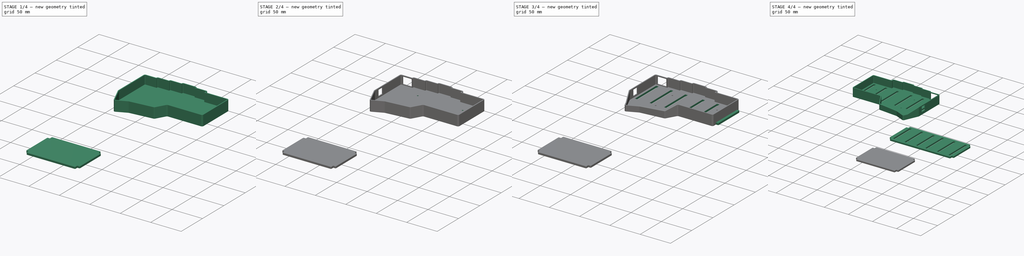
[diagram: build sequence overview — one tinted view per stage of 4, left to right]
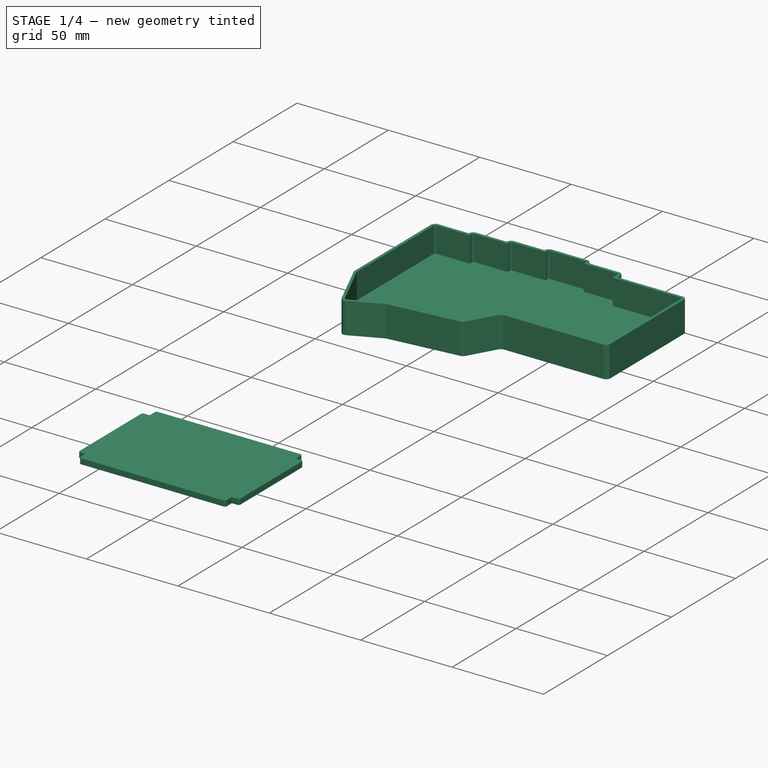
[diagram: stage 1 of 4 — iso view after this stage's code; geometry added in this stage tinted green]
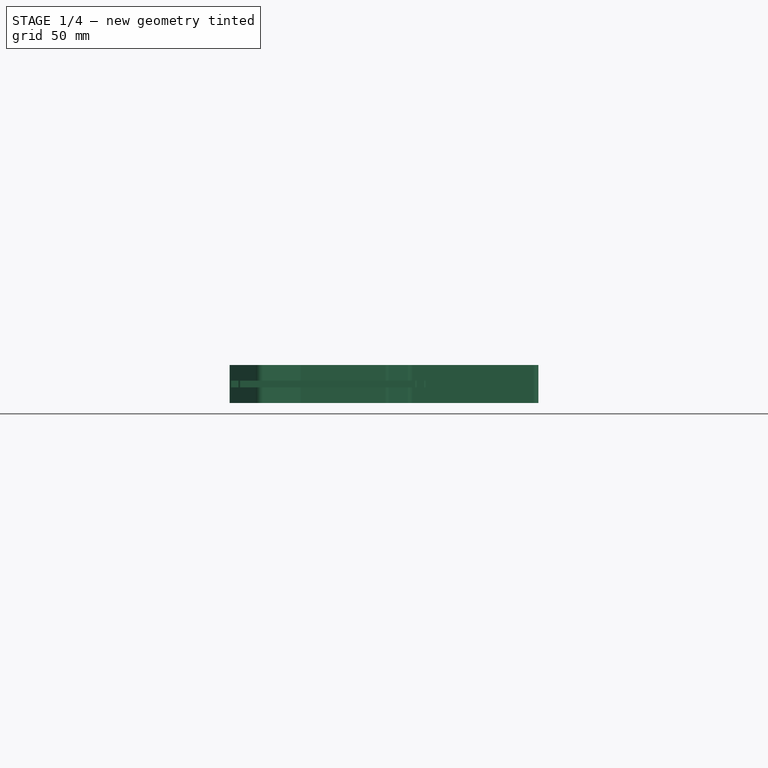
[diagram: stage 1 of 4 — front view after this stage's code; geometry added in this stage tinted green]
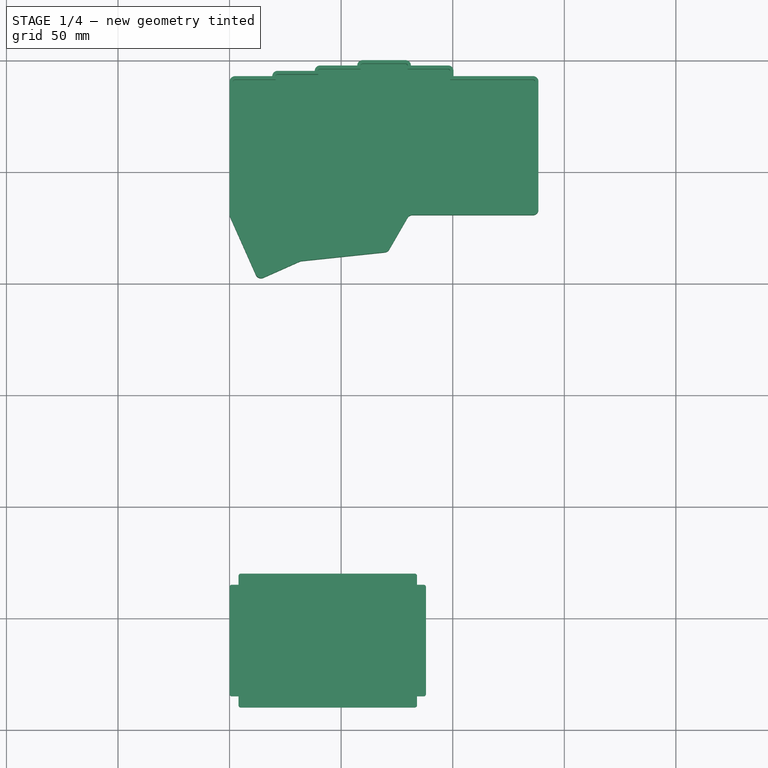
[diagram: stage 1 of 4 — top view after this stage's code; geometry added in this stage tinted green]
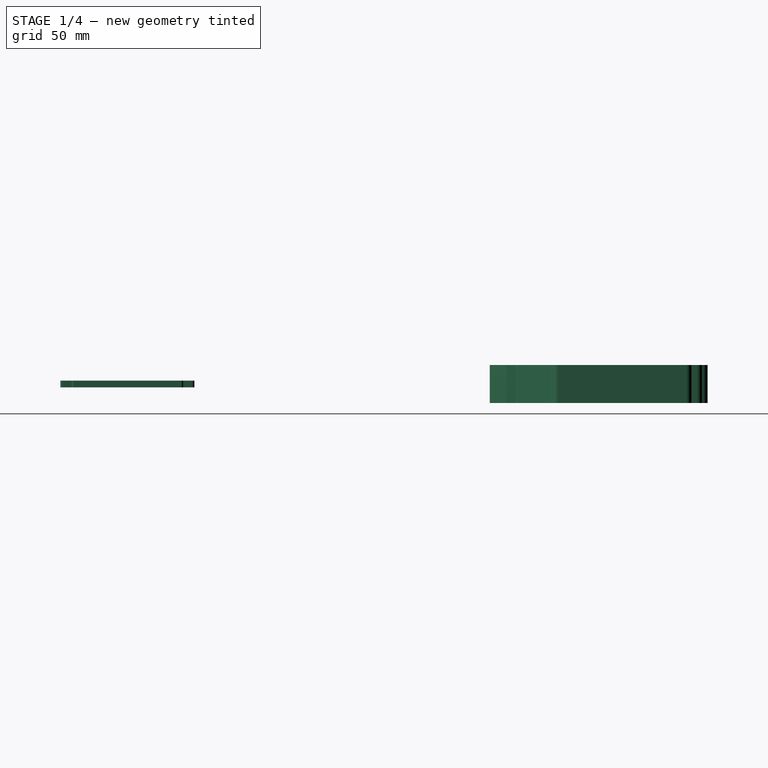
[diagram: stage 1 of 4 — right view after this stage's code; geometry added in this stage tinted green]
FCSTD DOCUMENT  (FreeCAD 0.21R33771 (Git))
Label: CorneCase
License: All rights reserved
LicenseURL: https://en.wikipedia.org/wiki/All_rights_reserved
objects: Sketcher::SketchObject×11, PartDesign::Pocket×7, PartDesign::Pad×4, PartDesign::Body×3, Part::Mirroring×1
note: 37 computed .brp shape members not serialized (recipe doc carries the construction recipe); baked Part::Feature solids carry a one-line shape summary decoded from their .brp

FEATURE [Sketcher::SketchObject] Sketch
  FullyConstrained = true
  MapMode = 5
  Support = -> [XY_Plane]
  sketch-geometry (27):
    g0: LineSegment StartX=2.47 StartY=-7.17 StartZ=0 EndX=19.13 EndY=-7.17 EndZ=0
    g1: LineSegment StartX=21.52 StartY=-4.78 StartZ=0 EndX=38.16 EndY=-4.78 EndZ=0
    g2: LineSegment StartX=40.55 StartY=-2.39 StartZ=0 EndX=57.21 EndY=-2.39 EndZ=0
    g3: LineSegment StartX=59.6 StartY=0 StartZ=0 EndX=78.87 EndY=0 EndZ=0
    g4: LineSegment StartX=81.26 StartY=-2.39 StartZ=0 EndX=97.95 EndY=-2.39 EndZ=0
    g5: LineSegment StartX=138.4 StartY=-9.54 StartZ=0 EndX=138.4 EndY=-66.93 EndZ=0
    g6: LineSegment StartX=136.01 StartY=-69.32 StartZ=0 EndX=82.02 EndY=-69.32 EndZ=0
    g7: LineSegment StartX=79.6817 StartY=-70.67 StartZ=0 EndX=71.58 EndY=-84.7026 EndZ=0
    g8: LineSegment StartX=69.524 StartY=-86.0378 StartZ=0 EndX=32.2149 EndY=-89.9592 EndZ=0
    g9: LineSegment StartX=31.3989 StartY=-90.1778 StartZ=0 EndX=15.1827 EndY=-97.3977 EndZ=0
    g10: LineSegment StartX=11.75 StartY=-96.08 StartZ=0 EndX=0.233427 EndY=-70.2134 EndZ=0
    g11: LineSegment StartX=3.6e-15 StartY=-69.1152 StartZ=0 EndX=3.6e-15 EndY=-9.64 EndZ=0
    g12: ArcOfCircle CenterX=2.47 CenterY=-9.64 CenterZ=0 NormalX=0 NormalY=0 NormalZ=1 AngleXU=0 Radius=2.47 StartAngle=1.5708 EndAngle=3.14159
    g13: ArcOfCircle CenterX=21.52 CenterY=-7.17 CenterZ=0 NormalX=0 NormalY=0 NormalZ=1 AngleXU=0 Radius=2.39 StartAngle=1.5708 EndAngle=3.14159
    g14: ArcOfCircle CenterX=40.55 CenterY=-4.78 CenterZ=0 NormalX=0 NormalY=0 NormalZ=1 AngleXU=0 Radius=2.39 StartAngle=1.5708 EndAngle=3.14159
    g15: ArcOfCircle CenterX=59.6 CenterY=-2.39 CenterZ=0 NormalX=0 NormalY=0 NormalZ=1 AngleXU=0 Radius=2.39 StartAngle=1.5708 EndAngle=3.14159
    g16: ArcOfCircle CenterX=78.87 CenterY=-2.39 CenterZ=0 NormalX=0 NormalY=0 NormalZ=1 AngleXU=0 Radius=2.39 StartAngle=1e-16 EndAngle=1.5708
    g17: ArcOfCircle CenterX=97.95 CenterY=-4.78 CenterZ=0 NormalX=0 NormalY=0 NormalZ=1 AngleXU=0 Radius=2.39 StartAngle=0 EndAngle=1.5708
    g18: ArcOfCircle CenterX=136.01 CenterY=-9.54 CenterZ=0 NormalX=0 NormalY=0 NormalZ=1 AngleXU=0 Radius=2.39 StartAngle=1e-16 EndAngle=1.5708
    g19: ArcOfCircle CenterX=136.01 CenterY=-66.93 CenterZ=0 NormalX=0 NormalY=0 NormalZ=1 AngleXU=0 Radius=2.39 StartAngle=4.71239 EndAngle=6.28319
    g20: ArcOfCircle CenterX=14.1252 CenterY=-95.0225 CenterZ=0 NormalX=0 NormalY=0 NormalZ=1 AngleXU=0 Radius=2.6 StartAngle=3.56047 EndAngle=5.13127
    g21: ArcOfCircle CenterX=2.7 CenterY=-69.1152 CenterZ=0 NormalX=0 NormalY=0 NormalZ=1 AngleXU=0 Radius=2.7 StartAngle=3.14159 EndAngle=3.56047
    g22: ArcOfCircle CenterX=32.4971 CenterY=-92.6444 CenterZ=0 NormalX=0 NormalY=0 NormalZ=1 AngleXU=0 Radius=2.7 StartAngle=1.67552 EndAngle=1.98968
    g23: ArcOfCircle CenterX=69.2417 CenterY=-83.3526 CenterZ=0 NormalX=0 NormalY=0 NormalZ=1 AngleXU=0 Radius=2.7 StartAngle=4.81711 EndAngle=5.75959
    g24: ArcOfCircle CenterX=82.02 CenterY=-72.02 CenterZ=0 NormalX=0 NormalY=0 NormalZ=1 AngleXU=0 Radius=2.7 StartAngle=1.5708 EndAngle=2.61799
    g25: LineSegment StartX=100.34 StartY=-4.78 StartZ=0 EndX=100.34 EndY=-7.15 EndZ=0
    g26: LineSegment StartX=100.34 StartY=-7.15 StartZ=0 EndX=136.01 EndY=-7.15 EndZ=0
  constraints (74):
    c: Horizontal(g0)
    c: Horizontal(g1)
    c: Horizontal(g2)
    c: Horizontal(g3)
    c: Horizontal(g4)
    c: Vertical(g5)
    c: Horizontal(g6)
    c: Vertical(g11)
    c: Tangent(g0,g12) = 1.5708
    c: Tangent(g11,g12) = 1.5708
    c: Tangent(g1,g13) = 1.5708
    c: Coincident(g0,g13)
    c: Tangent(g2,g14) = 1.5708
    c: Coincident(g1,g14)
    c: Tangent(g3,g15) = 1.5708
    c: Coincident(g15,g2)
    c: Tangent(g3,g16) = 1.5708
    c: Coincident(g16,g4)
    c: Tangent(g4,g17) = 1.5708
    c: Angle(g17) = 1.5708
    c: Tangent(g5,g18) = 1.5708
    c: Tangent(g5,g19) = 1.5708
    c: Tangent(g6,g19) = 1.5708
    c: Radius(g19) = 2.39
    c: Tangent(g9,g20) = 1.5708
    c: Tangent(g10,g20) = 1.5708
    c: Radius(g20) = 2.6
    c: Angle(g20) = 1.5708
    c: Tangent(g10,g21) = 1.5708
    c: Tangent(g11,g21) = 1.5708
    c: Radius(g21) = 2.7
    c: Tangent(g8,g22) = -1.5708
    c: Tangent(g9,g22) = -1.5708
    c: Radius(g22) = 2.7
    c: Tangent(g7,g23) = 1.5708
    c: Tangent(g8,g23) = 1.5708
    c: Radius(g23) = 2.7
    c: Tangent(g6,g24) = -1.5708
    c: Tangent(g7,g24) = -1.5708
    c: Radius(g24) = 2.7
    c: Coincident(g25,g17)
    c: Vertical(g25)
    c: Coincident(g26,g25)
    c: Coincident(g26,g18)
    c: Horizontal(g26)
    c: Angle(g21) = 0.418879
    c: Angle(g22) = 0.314159
    c: Angle(g23) = 0.942478
    c: Angle(g18) = 1.5708
    c: Angle(g15) = 1.5708
    c: Angle(g14) = 1.5708
    c: Angle(g13) = 1.5708
    c: Radius(g12) = 2.47
    c: DistanceY(g0,g1) = 2.39
    c: DistanceX(g11,g0) = 19.13
    c: DistanceX(g0,g1) = 19.03
    c: DistanceX(g1,g2) = 19.05
    c: DistanceX(g2,g4) = 24.05
    c: DistanceX(g4,g25) = 19.08
    c: DistanceX(g25,g5) = 38.06
    c: DistanceX(g11,g10) = 11.75
    c: DistanceY(g1,g2) = 2.39
    c: DistanceY(g2,g3) = 2.39
    c: DistanceY(g4,g3) = 2.39
    c: DistanceY(g25,g4) = 4.76
    c: Angle(g16) = 1.5708
    c: DistanceY(g17,g4) = 2.39
    c: Radius(g18) = 2.39
    c: DistanceY(g6,g18) = 62.17
    c: DistanceX(g6,g5) = 56.38
    c: DistanceX(g7,g6) = 10.44
    c: DistanceY(g10,g0) = 88.91
    c: DistanceY(g3,g-1) = 0
    c: DistanceX(g-1,g11) = 0
FEATURE [PartDesign::Pad] Pad
  Direction = (0,0,1)
  Length = 17
  Length2 = 10
  Profile = -> Sketch
  ReferenceAxis = -> Sketch [N_Axis]
  Reversed = true
  Type = 0
FEATURE [Sketcher::SketchObject] Sketch001
  ExternalGeometry = -> [Pad]
  FullyConstrained = true
  MapMode = 5
  Support = -> [XY_Plane]
  sketch-geometry (30):
    g0: LineSegment StartX=2.47 StartY=-8.67 StartZ=0 EndX=20.63 EndY=-8.67 EndZ=0
    g1: LineSegment StartX=20.63 StartY=-8.67 StartZ=0 EndX=20.63 EndY=-7.17 EndZ=0
    g2: LineSegment StartX=21.52 StartY=-6.28 StartZ=0 EndX=39.66 EndY=-6.28 EndZ=0
    g3: LineSegment StartX=39.66 StartY=-6.28 StartZ=0 EndX=39.66 EndY=-4.78 EndZ=0
    g4: LineSegment StartX=40.55 StartY=-3.89 StartZ=0 EndX=58.71 EndY=-3.89 EndZ=0
    g5: LineSegment StartX=58.71 StartY=-3.89 StartZ=0 EndX=58.71 EndY=-2.39 EndZ=0
    g6: LineSegment StartX=59.6 StartY=-1.5 StartZ=0 EndX=78.87 EndY=-1.5 EndZ=0
    g7: LineSegment StartX=79.76 StartY=-2.39 StartZ=0 EndX=79.76 EndY=-3.89 EndZ=0
    g8: LineSegment StartX=79.76 StartY=-3.89 StartZ=0 EndX=97.95 EndY=-3.89 EndZ=0
    g9: LineSegment StartX=98.84 StartY=-4.78 StartZ=0 EndX=98.84 EndY=-8.65 EndZ=0
    g10: LineSegment StartX=98.84 StartY=-8.65 StartZ=0 EndX=136.01 EndY=-8.65 EndZ=0
    g11: LineSegment StartX=136.9 StartY=-9.54 StartZ=0 EndX=136.9 EndY=-66.93 EndZ=0
    g12: LineSegment StartX=136.01 StartY=-67.82 StartZ=0 EndX=79.34 EndY=-67.82 EndZ=0
    g13: LineSegment StartX=79.34 StartY=-67.82 StartZ=0 EndX=70.3745 EndY=-83.8099 EndZ=0
    g14: LineSegment StartX=69.2251 StartY=-84.5679 StartZ=0 EndX=31.6471 EndY=-88.5708 EndZ=0
    g15: LineSegment StartX=31.1972 StartY=-88.6914 StartZ=0 EndX=14.9159 EndY=-95.9216 EndZ=0
    g16: LineSegment StartX=12.9386 StartY=-95.1651 StartZ=0 EndX=1.7334 EndY=-70.205 EndZ=0
    g17: LineSegment StartX=1.5 StartY=-69.1152 StartZ=0 EndX=1.5 EndY=-9.64 EndZ=0
    g18: ArcOfCircle CenterX=21.52 CenterY=-7.17 CenterZ=0 NormalX=0 NormalY=0 NormalZ=1 AngleXU=0 Radius=0.89 StartAngle=1.5708 EndAngle=3.14159
    g19: ArcOfCircle CenterX=40.55 CenterY=-4.78 CenterZ=0 NormalX=0 NormalY=0 NormalZ=1 AngleXU=0 Radius=0.89 StartAngle=1.5708 EndAngle=3.14159
    g20: ArcOfCircle CenterX=59.6 CenterY=-2.39 CenterZ=0 NormalX=0 NormalY=0 NormalZ=1 AngleXU=0 Radius=0.89 StartAngle=1.5708 EndAngle=3.14159
    g21: ArcOfCircle CenterX=78.87 CenterY=-2.39 CenterZ=0 NormalX=0 NormalY=0 NormalZ=1 AngleXU=0 Radius=0.89 StartAngle=0 EndAngle=1.5708
    g22: ArcOfCircle CenterX=97.95 CenterY=-4.78 CenterZ=0 NormalX=0 NormalY=0 NormalZ=1 AngleXU=0 Radius=0.89 StartAngle=-9e-16 EndAngle=1.5708
    g23: ArcOfCircle CenterX=136.01 CenterY=-9.54 CenterZ=0 NormalX=0 NormalY=0 NormalZ=1 AngleXU=0 Radius=0.89 StartAngle=6e-16 EndAngle=1.5708
    g24: ArcOfCircle CenterX=136.01 CenterY=-66.93 CenterZ=0 NormalX=0 NormalY=0 NormalZ=1 AngleXU=0 Radius=0.89 StartAngle=4.71239 EndAngle=6.28319
    g25: ArcOfCircle CenterX=2.47 CenterY=-9.64 CenterZ=0 NormalX=0 NormalY=0 NormalZ=1 AngleXU=0 Radius=0.97 StartAngle=1.5708 EndAngle=3.14159
    g26: ArcOfCircle CenterX=4.16101 CenterY=-69.1152 CenterZ=0 NormalX=0 NormalY=0 NormalZ=1 AngleXU=0 Radius=2.66101 StartAngle=3.14159 EndAngle=3.56355
    g27: ArcOfCircle CenterX=69.0662 CenterY=-83.0763 CenterZ=0 NormalX=0 NormalY=0 NormalZ=1 AngleXU=0 Radius=1.5 StartAngle=4.81851 EndAngle=5.77217
    g28: ArcOfCircle CenterX=14.3071 CenterY=-94.5507 CenterZ=0 NormalX=0 NormalY=0 NormalZ=1 AngleXU=0 Radius=1.5 StartAngle=3.56355 EndAngle=5.13031
    g29: ArcOfCircle CenterX=31.806 CenterY=-90.0623 CenterZ=0 NormalX=0 NormalY=0 NormalZ=1 AngleXU=0 Radius=1.5 StartAngle=1.67692 EndAngle=1.98872
  constraints (78):
    c: Horizontal(g0)
    c: Coincident(g0,g1)
    c: Horizontal(g2)
    c: Coincident(g2,g3)
    c: Horizontal(g4)
    c: Coincident(g4,g5)
    c: Horizontal(g6)
    c: Coincident(g7,g8)
    c: Horizontal(g8)
    c: Coincident(g9,g10)
    c: Horizontal(g10)
    c: Vertical(g11)
    c: Horizontal(g12)
    c: Coincident(g12,g13)
    c: Vertical(g17)
    c: Tangent(g1,g18) = 1.5708
    c: Tangent(g2,g18) = 1.5708
    c: Tangent(g3,g19) = 1.5708
    c: Tangent(g4,g19) = 1.5708
    c: Tangent(g5,g20) = 1.5708
    c: Tangent(g6,g20) = 1.5708
    c: Tangent(g6,g21) = 1.5708
    c: Tangent(g7,g21) = 1.5708
    c: Tangent(g8,g22) = 1.5708
    c: Tangent(g9,g22) = 1.5708
    c: Tangent(g10,g23) = 1.5708
    c: Tangent(g11,g23) = 1.5708
    c: Tangent(g11,g24) = 1.5708
    c: Tangent(g12,g24) = 1.5708
    c: Tangent(g0,g25) = 1.5708
    c: Tangent(g17,g25) = 1.5708
    c: DistanceX(g-3,g17) = 1.5
    c: Tangent(g16,g26) = 1.5708
    c: Tangent(g17,g26) = 1.5708
    c: DistanceX(g-5,g2) = 0
    c: DistanceY(g1,g-4) = 0
    c: DistanceX(g0,g-4) = 0
    c: DistanceX(g-5,g2) = 1.5
    c: DistanceX(g-5,g3) = 1.5
    c: DistanceY(g-5,g3) = 0
    c: DistanceY(g4,g-6) = 1.5
    c: DistanceX(g-7,g6) = 0
    c: DistanceX(g6,g-7) = 0
    c: DistanceX(g7,g-8) = 1.5
    c: Vertical(g9)
    c: Vertical(g7)
    c: DistanceX(g9,g-9) = 1.5
    c: DistanceX(g8,g-8) = 0
    c: DistanceY(g9,g-9) = 1.5
    c: DistanceY(g8,g-8) = 1.5
    c: DistanceY(g6,g-7) = 1.5
    c: Vertical(g5)
    c: DistanceX(g10,g-9) = 0
    c: DistanceX(g-6,g5) = 1.5
    c: Tangent(g13,g27) = 1.5708
    c: Tangent(g14,g27) = 1.5708
    c: DistanceY(g0,g-4) = 1.5
    c: DistanceX(g-4,g1) = 1.5
    c: Vertical(g1)
    c: DistanceX(g11,g-10) = 1.5
    c: DistanceY(g-11,g12) = 1.5
    c: DistanceY(g17,g-3) = 0
    c: Tangent(g15,g28) = 1.5708
    c: Tangent(g16,g28) = 1.5708
    c: Distance(g16,g-15) = 1.5
    c: Distance(g14,g-13) = 1.5
    c: Distance(g-15,g16) = 1.5
    c: DistanceX(g12,g11) = 57.56
    c: DistanceX(g12,g-11) = 0
    c: Radius(g27) = 1.5
    c: Radius(g28) = 1.5
    c: Tangent(g14,g29) = -1.5708
    c: Tangent(g15,g29) = -1.5708
    c: Radius(g29) = 1.5
    c: Distance(g15,g-14) = 1.5
    c: Distance(g14,g-13) = 1.5
    c: Distance(g15,g-14) = 1.5
    c: Distance(g13,g-12) = 1.5
FEATURE [PartDesign::Pocket] Pocket  label="CasePocket"
  BaseFeature = -> Pad
  Direction = (0,0,-1)
  Length = 14
  Length2 = 5
  Profile = -> Sketch001
  ReferenceAxis = -> Sketch001 [N_Axis]
  Type = 0
FEATURE [Sketcher::SketchObject] Sketch014
  FullyConstrained = true
  MapMode = 5
  Support = -> [XY_Plane002]
  sketch-geometry (20):
    g0: LineSegment StartX=1 StartY=-235 StartZ=0 EndX=4 EndY=-235 EndZ=0
    g1: LineSegment StartX=4 StartY=-235 StartZ=0 EndX=4 EndY=-231 EndZ=0
    g2: LineSegment StartX=5 StartY=-230 StartZ=0 EndX=83 EndY=-230 EndZ=0
    g3: LineSegment StartX=84 StartY=-231 StartZ=0 EndX=84 EndY=-235 EndZ=0
    g4: LineSegment StartX=84 StartY=-235 StartZ=0 EndX=87 EndY=-235 EndZ=0
    g5: LineSegment StartX=88 StartY=-236 StartZ=0 EndX=88 EndY=-284 EndZ=0
    g6: LineSegment StartX=87 StartY=-285 StartZ=0 EndX=84 EndY=-285 EndZ=0
    g7: LineSegment StartX=84 StartY=-285 StartZ=0 EndX=84 EndY=-289 EndZ=0
    g8: LineSegment StartX=83 StartY=-290 StartZ=0 EndX=5 EndY=-290 EndZ=0
    g9: LineSegment StartX=4 StartY=-289 StartZ=0 EndX=4 EndY=-285 EndZ=0
    g10: LineSegment StartX=4 StartY=-285 StartZ=0 EndX=1 EndY=-285 EndZ=0
    g11: LineSegment StartX=-4.83e-14 StartY=-284 StartZ=0 EndX=-4.83e-14 EndY=-236 EndZ=0
    g12: ArcOfCircle CenterX=83 CenterY=-231 CenterZ=0 NormalX=0 NormalY=0 NormalZ=1 AngleXU=0 Radius=1 StartAngle=9e-16 EndAngle=1.5708
    g13: ArcOfCircle CenterX=87 CenterY=-236 CenterZ=0 NormalX=0 NormalY=0 NormalZ=1 AngleXU=0 Radius=1 StartAngle=8.4e-15 EndAngle=1.5708
    g14: ArcOfCircle CenterX=87 CenterY=-284 CenterZ=0 NormalX=0 NormalY=0 NormalZ=1 AngleXU=0 Radius=1 StartAngle=4.71239 EndAngle=6.28319
    g15: ArcOfCircle CenterX=83 CenterY=-289 CenterZ=0 NormalX=0 NormalY=0 NormalZ=1 AngleXU=0 Radius=1 StartAngle=4.71239 EndAngle=6.28319
    g16: ArcOfCircle CenterX=5 CenterY=-289 CenterZ=0 NormalX=0 NormalY=0 NormalZ=1 AngleXU=0 Radius=1 StartAngle=3.14159 EndAngle=4.71239
    g17: ArcOfCircle CenterX=1 CenterY=-284 CenterZ=0 NormalX=0 NormalY=0 NormalZ=1 AngleXU=0 Radius=1 StartAngle=3.14159 EndAngle=4.71239
    g18: ArcOfCircle CenterX=1 CenterY=-236 CenterZ=0 NormalX=0 NormalY=0 NormalZ=1 AngleXU=0 Radius=1 StartAngle=1.5708 EndAngle=3.14159
    g19: ArcOfCircle CenterX=5 CenterY=-231 CenterZ=0 NormalX=0 NormalY=0 NormalZ=1 AngleXU=0 Radius=1 StartAngle=1.5708 EndAngle=3.14159
  constraints (52):
    c: Coincident(g0,g1)
    c: Vertical(g1)
    c: Horizontal(g2)
    c: Vertical(g3)
    c: Coincident(g3,g4)
    c: Vertical(g5)
    c: Coincident(g6,g7)
    c: Vertical(g7)
    c: Horizontal(g8)
    c: Vertical(g9)
    c: Coincident(g9,g10)
    c: Vertical(g11)
    c: Tangent(g2,g12) = 1.5708
    c: Tangent(g3,g12) = 1.5708
    c: Tangent(g4,g13) = 1.5708
    c: Tangent(g5,g13) = 1.5708
    c: Tangent(g5,g14) = 1.5708
    c: Tangent(g6,g14) = 1.5708
    c: Tangent(g7,g15) = 1.5708
    c: Tangent(g8,g15) = 1.5708
    c: Tangent(g8,g16) = 1.5708
    c: Tangent(g9,g16) = 1.5708
    c: Tangent(g10,g17) = 1.5708
    c: Tangent(g11,g17) = 1.5708
    c: Tangent(g0,g18) = 1.5708
    c: Tangent(g11,g18) = 1.5708
    c: Tangent(g1,g19) = 1.5708
    c: Tangent(g2,g19) = 1.5708
    c: DistanceY(g8,g9) = 5
    c: DistanceY(g8,g6) = 5
    c: DistanceY(g3,g2) = 5
    c: DistanceY(g0,g2) = 5
    c: Radius(g19) = 1
    c: Radius(g18) = 1
    c: Radius(g17) = 1
    c: Radius(g16) = 1
    c: Radius(g15) = 1
    c: Radius(g14) = 1
    c: Radius(g13) = 1
    c: Radius(g12) = 1
    c: DistanceY(g4,g3) = 0
    c: DistanceY(g6,g6) = 0
    c: DistanceY(g0,g0) = 0
    c: DistanceY(g9,g10) = 0
    c: DistanceX(g3,g5) = 4
    c: DistanceX(g11,g0) = 4
    c: Equal(g2,g8)
    c: DistanceX(g2,g8) = 0
    c: DistanceX(g0,g3) = 80
    c: DistanceX(g-1,g11) = 0
    c: DistanceY(g2,g-1) = 230
    c: DistanceY(g9,g0) = 50
FEATURE [PartDesign::Pad] Pad004
  Direction = (0,0,1)
  Length = 10
  Length2 = -7
  Profile = -> Sketch014
  ReferenceAxis = -> Sketch014 [N_Axis]
  Reversed = true
  Type = 4
FEATURE [PartDesign::Body] Body002  label="PlateSmall"
  Group = -> [Sketch014,Pad004]
  Origin = -> Origin002
  Tip = -> Pad004
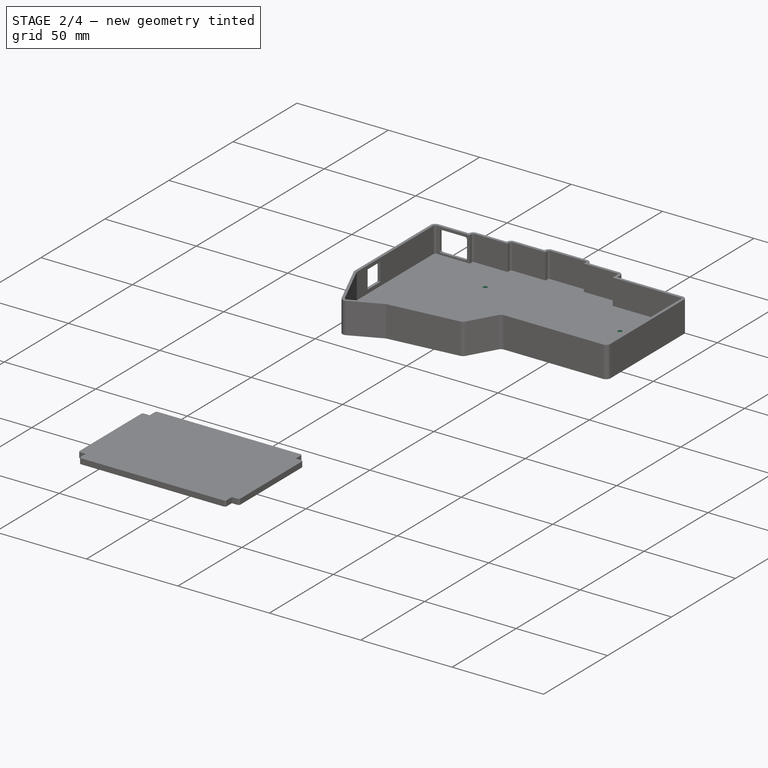
[diagram: stage 2 of 4 — iso view after this stage's code; geometry added in this stage tinted green]
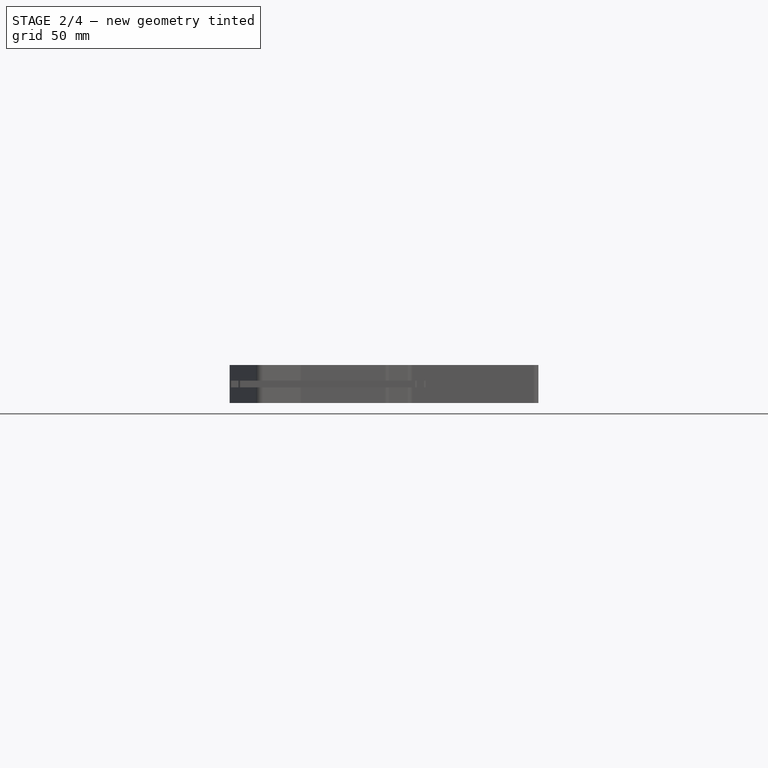
[diagram: stage 2 of 4 — front view after this stage's code; geometry added in this stage tinted green]
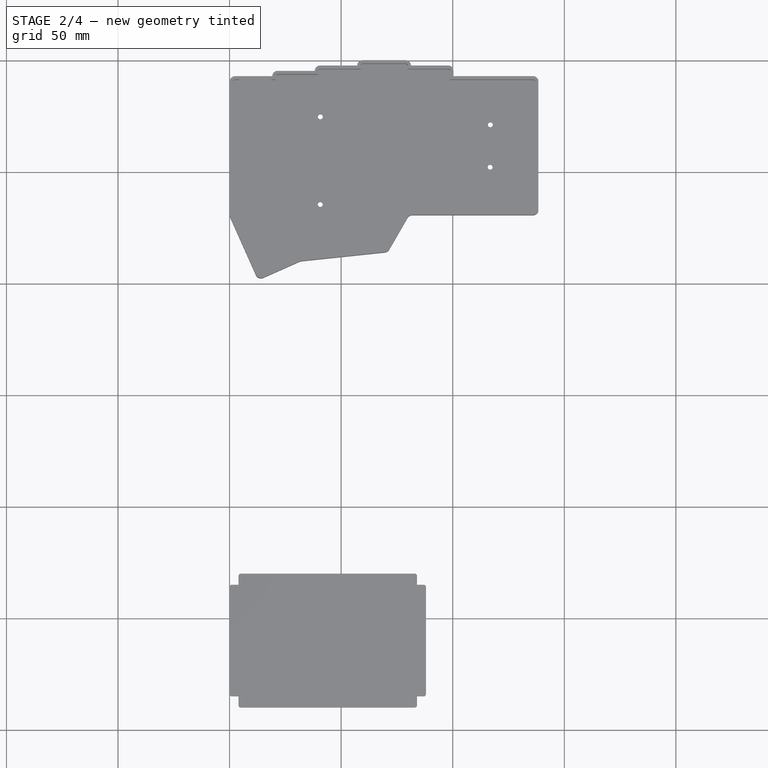
[diagram: stage 2 of 4 — top view after this stage's code; geometry added in this stage tinted green]
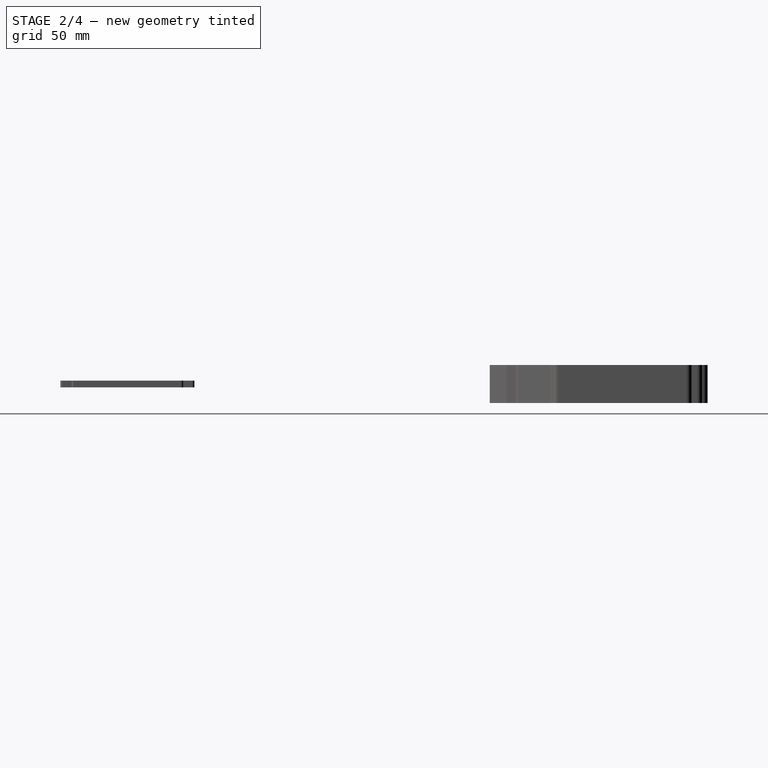
[diagram: stage 2 of 4 — right view after this stage's code; geometry added in this stage tinted green]
FEATURE [Sketcher::SketchObject] Sketch002
  ExternalGeometry = -> [Pocket]
  FullyConstrained = true
  MapMode = 5
  Support = -> [XY_Plane]
  sketch-geometry (4):
    g0: Circle CenterX=40.67 CenterY=-25.14 CenterZ=0 NormalX=0 NormalY=0 NormalZ=1 AngleXU=0 Radius=1.1
    g1: Circle CenterX=40.64 CenterY=-64.43 CenterZ=0 NormalX=0 NormalY=0 NormalZ=1 AngleXU=0 Radius=1.1
    g2: Circle CenterX=116.85 CenterY=-28.71 CenterZ=0 NormalX=0 NormalY=0 NormalZ=1 AngleXU=0 Radius=1.1
    g3: Circle CenterX=116.78 CenterY=-47.72 CenterZ=0 NormalX=0 NormalY=0 NormalZ=1 AngleXU=0 Radius=1.1
  constraints (12):
    c: Radius(g0) = 1.1
    c: DistanceX(g-3,g0) = 40.67
    c: DistanceY(g0,g-3) = 15.5
    c: Radius(g1) = 1.1
    c: DistanceX(g-3,g1) = 40.64
    c: DistanceY(g1,g-3) = 54.79
    c: Radius(g2) = 1.1
    c: Radius(g3) = 1.1
    c: DistanceY(g2,g-3) = 19.07
    c: DistanceX(g-3,g2) = 116.85
    c: DistanceX(g-3,g3) = 116.78
    c: DistanceY(g3,g-3) = 38.08
FEATURE [PartDesign::Pocket] Pocket001  label="ScrewPocket"
  BaseFeature = -> Pocket
  Direction = (0,0,-1)
  Length = 0
  Length2 = 5
  Offset = -9
  Profile = -> Sketch002
  ReferenceAxis = -> Sketch002 [N_Axis]
  Type = 1
FEATURE [Sketcher::SketchObject] Sketch003
  ExternalGeometry = -> [Pocket001]
  FullyConstrained = true
  MapMode = 5
  Placement = pos=(0,0,0) rot=(1,0,0;1.5708rad)
  Support = -> [XZ_Plane]
  sketch-geometry (8):
    g0: LineSegment StartX=18.13 StartY=-1.5 StartZ=0 EndX=5.22 EndY=-1.5 EndZ=0
    g1: LineSegment StartX=4.22 StartY=-2.5 StartZ=0 EndX=4.22 EndY=-12 EndZ=0
    g2: LineSegment StartX=5.22 StartY=-13 StartZ=0 EndX=18.13 EndY=-13 EndZ=0
    g3: LineSegment StartX=19.13 StartY=-12 StartZ=0 EndX=19.13 EndY=-2.5 EndZ=0
    g4: ArcOfCircle CenterX=18.13 CenterY=-2.5 CenterZ=0 NormalX=0 NormalY=0 NormalZ=1 AngleXU=0 Radius=1 StartAngle=1e-16 EndAngle=1.5708
    g5: ArcOfCircle CenterX=5.22 CenterY=-2.5 CenterZ=0 NormalX=0 NormalY=0 NormalZ=1 AngleXU=0 Radius=1 StartAngle=1.5708 EndAngle=3.14159
    g6: ArcOfCircle CenterX=5.22 CenterY=-12 CenterZ=0 NormalX=0 NormalY=0 NormalZ=1 AngleXU=0 Radius=1 StartAngle=3.14159 EndAngle=4.71239
    g7: ArcOfCircle CenterX=18.13 CenterY=-12 CenterZ=0 NormalX=0 NormalY=0 NormalZ=1 AngleXU=0 Radius=1 StartAngle=4.71239 EndAngle=6.28319
  constraints (20):
    c: Horizontal(g0)
    c: Horizontal(g2)
    c: Vertical(g1)
    c: Vertical(g3)
    c: Tangent(g0,g4) = -1.5708
    c: Tangent(g3,g4) = -1.5708
    c: Tangent(g0,g5) = -1.5708
    c: Tangent(g1,g5) = -1.5708
    c: Tangent(g1,g6) = -1.5708
    c: Tangent(g2,g6) = -1.5708
    c: Tangent(g2,g7) = -1.5708
    c: Tangent(g3,g7) = -1.5708
    c: DistanceY(g0,g-5) = 1.5
    c: DistanceY(g-6,g2) = 4
    c: DistanceX(g-4,g1) = 1.75
    c: DistanceX(g3,g-5) = 0
    c: Radius(g4) = 1
    c: Radius(g5) = 1
    c: Radius(g6) = 1
    c: Radius(g7) = 1
FEATURE [PartDesign::Pocket] Pocket002  label="USBPocket"
  BaseFeature = -> Pocket001
  Direction = (0,1,2e-16)
  Length = 18
  Length2 = 5
  Offset = 4
  Profile = -> Sketch003
  ReferenceAxis = -> Sketch003 [N_Axis]
  Reversed = true
  Type = 2
FEATURE [Sketcher::SketchObject] Sketch004
  ExternalGeometry = -> [Pocket002]
  FullyConstrained = true
  MapMode = 5
  Placement = pos=(0,0,0) rot=(0.57735,0.57735,0.57735;2.0944rad)
  Support = -> [YZ_Plane]
  sketch-geometry (4):
    g0: LineSegment StartX=-51.1152 StartY=-2 StartZ=0 EndX=-61.1152 EndY=-2 EndZ=0
    g1: LineSegment StartX=-61.1152 StartY=-2 StartZ=0 EndX=-61.1152 EndY=-12 EndZ=0
    g2: LineSegment StartX=-61.1152 StartY=-12 StartZ=0 EndX=-51.1152 EndY=-12 EndZ=0
    g3: LineSegment StartX=-51.1152 StartY=-12 StartZ=0 EndX=-51.1152 EndY=-2 EndZ=0
  constraints (12):
    c: Coincident(g0,g1)
    c: Coincident(g1,g2)
    c: Coincident(g2,g3)
    c: Coincident(g3,g0)
    c: Horizontal(g0)
    c: Horizontal(g2)
    c: Vertical(g1)
    c: Vertical(g3)
    c: DistanceY(g0,g-4) = 2
    c: DistanceY(g-5,g1) = 2
    c: DistanceX(g-4,g0) = 8
    c: DistanceX(g0,g0) = 10
FEATURE [PartDesign::Pocket] Pocket003  label="TRRSPocket"
  BaseFeature = -> Pocket002
  Direction = (100,1,0)
  Length = 22
  Length2 = 5
  Profile = -> Sketch004
  ReferenceAxis = -> Sketch004 [N_Axis]
  Type = 2
  UseCustomVector = true
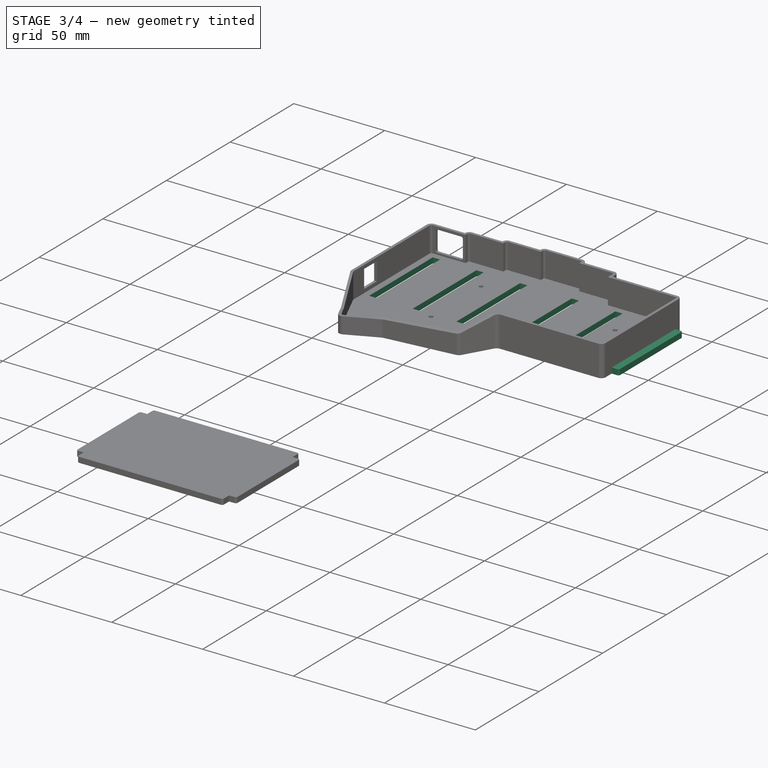
[diagram: stage 3 of 4 — iso view after this stage's code; geometry added in this stage tinted green]
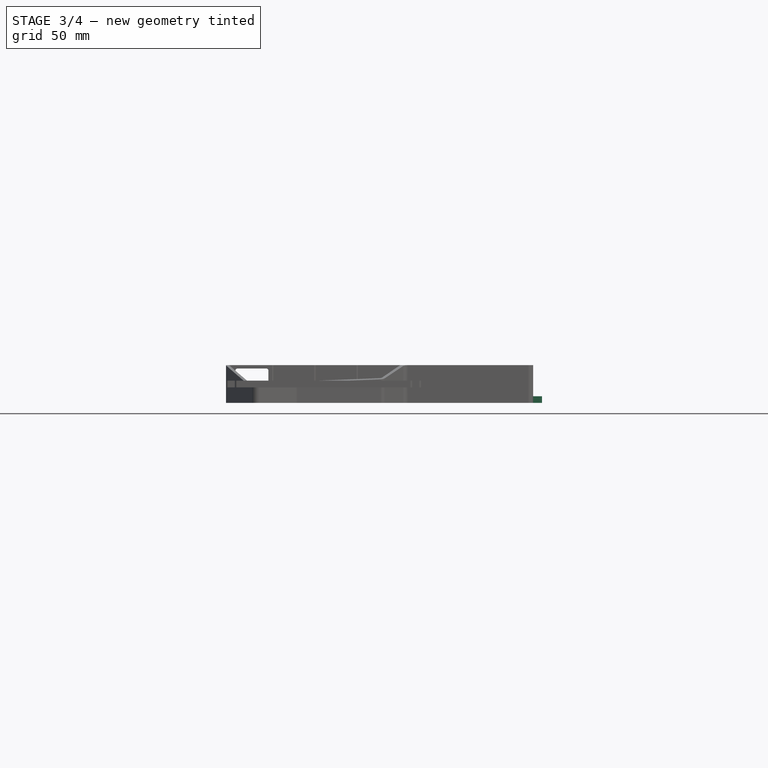
[diagram: stage 3 of 4 — front view after this stage's code; geometry added in this stage tinted green]
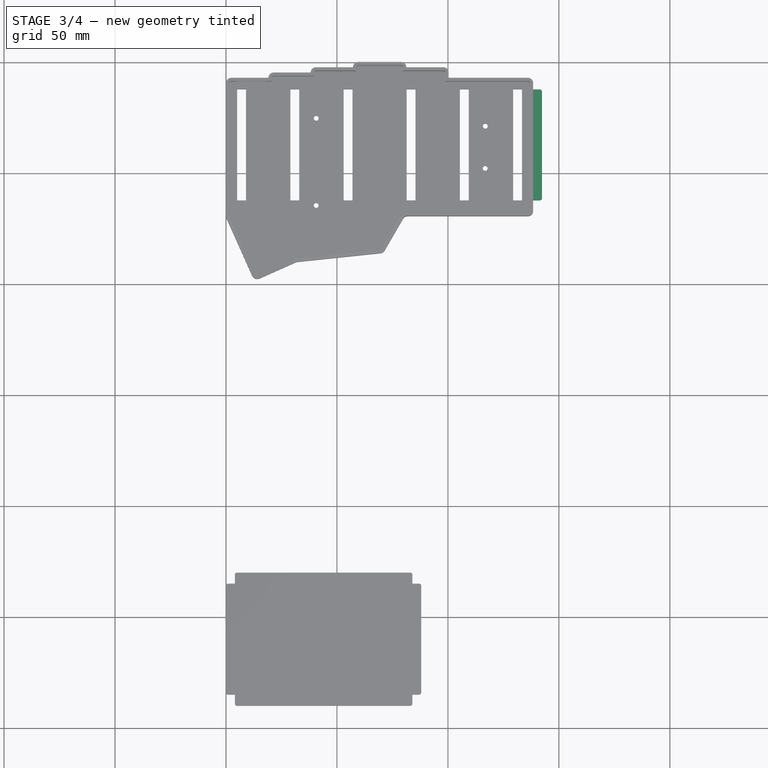
[diagram: stage 3 of 4 — top view after this stage's code; geometry added in this stage tinted green]
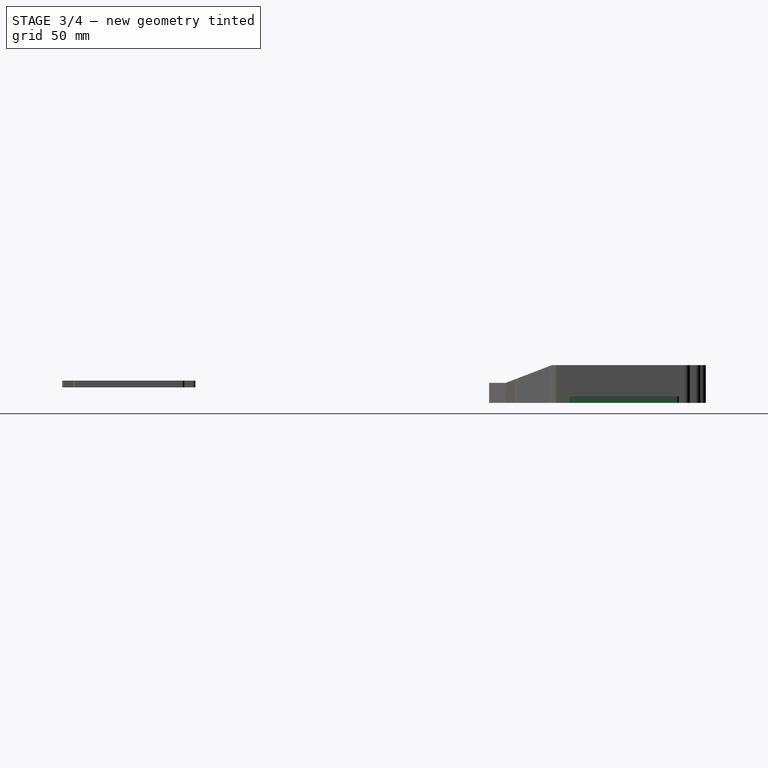
[diagram: stage 3 of 4 — right view after this stage's code; geometry added in this stage tinted green]
FEATURE [PartDesign::Body] Body001  label="Plate"
  Group = -> [Sketch009,Pad002,Sketch010,Pocket007]
  Origin = -> Origin001
  Tip = -> Pocket007
FEATURE [Sketcher::SketchObject] Sketch011
  ExternalGeometry = -> [Pocket003]
  FullyConstrained = true
  MapMode = 5
  Support = -> [XY_Plane]
  sketch-geometry (24):
    g0: LineSegment StartX=5 StartY=-12.15 StartZ=0 EndX=9 EndY=-12.15 EndZ=0
    g1: LineSegment StartX=9 StartY=-12.15 StartZ=0 EndX=9 EndY=-62.15 EndZ=0
    g2: LineSegment StartX=9 StartY=-62.15 StartZ=0 EndX=5 EndY=-62.15 EndZ=0
    g3: LineSegment StartX=5 StartY=-62.15 StartZ=0 EndX=5 EndY=-12.15 EndZ=0
    g4: LineSegment StartX=29 StartY=-12.15 StartZ=0 EndX=33 EndY=-12.15 EndZ=0
    g5: LineSegment StartX=33 StartY=-12.15 StartZ=0 EndX=33 EndY=-62.15 EndZ=0
    g6: LineSegment StartX=33 StartY=-62.15 StartZ=0 EndX=29 EndY=-62.15 EndZ=0
    g7: LineSegment StartX=29 StartY=-62.15 StartZ=0 EndX=29 EndY=-12.15 EndZ=0
    g8: LineSegment StartX=53 StartY=-12.15 StartZ=0 EndX=57 EndY=-12.15 EndZ=0
    g9: LineSegment StartX=57 StartY=-12.15 StartZ=0 EndX=57 EndY=-62.15 EndZ=0
    g10: LineSegment StartX=57 StartY=-62.15 StartZ=0 EndX=53 EndY=-62.15 EndZ=0
    g11: LineSegment StartX=53 StartY=-62.15 StartZ=0 EndX=53 EndY=-12.15 EndZ=0
    g12: LineSegment StartX=81.4 StartY=-12.15 StartZ=0 EndX=85.4 EndY=-12.15 EndZ=0
    g13: LineSegment StartX=85.4 StartY=-12.15 StartZ=0 EndX=85.4 EndY=-62.15 EndZ=0
    g14: LineSegment StartX=85.4 StartY=-62.15 StartZ=0 EndX=81.4 EndY=-62.15 EndZ=0
    g15: LineSegment StartX=81.4 StartY=-62.15 StartZ=0 EndX=81.4 EndY=-12.15 EndZ=0
    g16: LineSegment StartX=105.4 StartY=-12.15 StartZ=0 EndX=109.4 EndY=-12.15 EndZ=0
    g17: LineSegment StartX=109.4 StartY=-12.15 StartZ=0 EndX=109.4 EndY=-62.15 EndZ=0
    g18: LineSegment StartX=109.4 StartY=-62.15 StartZ=0 EndX=105.4 EndY=-62.15 EndZ=0
    g19: LineSegment StartX=105.4 StartY=-62.15 StartZ=0 EndX=105.4 EndY=-12.15 EndZ=0
    g20: LineSegment StartX=129.4 StartY=-12.15 StartZ=0 EndX=133.4 EndY=-12.15 EndZ=0
    g21: LineSegment StartX=133.4 StartY=-12.15 StartZ=0 EndX=133.4 EndY=-62.15 EndZ=0
    g22: LineSegment StartX=133.4 StartY=-62.15 StartZ=0 EndX=129.4 EndY=-62.15 EndZ=0
    g23: LineSegment StartX=129.4 StartY=-62.15 StartZ=0 EndX=129.4 EndY=-12.15 EndZ=0
  constraints (72):
    c: Coincident(g0,g1)
    c: Coincident(g1,g2)
    c: Coincident(g2,g3)
    c: Coincident(g3,g0)
    c: Horizontal(g0)
    c: Horizontal(g2)
    c: Vertical(g1)
    c: Vertical(g3)
    c: Coincident(g4,g5)
    c: Coincident(g5,g6)
    c: Coincident(g6,g7)
    c: Coincident(g7,g4)
    c: Horizontal(g4)
    c: Horizontal(g6)
    c: Vertical(g5)
    c: Vertical(g7)
    c: Coincident(g8,g9)
    c: Coincident(g9,g10)
    c: Coincident(g10,g11)
    c: Coincident(g11,g8)
    c: Horizontal(g8)
    c: Horizontal(g10)
    c: Vertical(g9)
    c: Vertical(g11)
    c: Coincident(g12,g13)
    c: Coincident(g13,g14)
    c: Coincident(g14,g15)
    c: Coincident(g15,g12)
    c: Horizontal(g12)
    c: Horizontal(g14)
    c: Vertical(g13)
    c: Vertical(g15)
    c: Coincident(g16,g17)
    c: Coincident(g17,g18)
    c: Coincident(g18,g19)
    c: Coincident(g19,g16)
    c: Horizontal(g16)
    c: Horizontal(g18)
    c: Vertical(g17)
    c: Vertical(g19)
    c: Coincident(g20,g21)
    c: Coincident(g21,g22)
    c: Coincident(g22,g23)
    c: Coincident(g23,g20)
    c: Horizontal(g20)
    c: Horizontal(g22)
    c: Vertical(g21)
    c: Vertical(g23)
    c: DistanceY(g20,g-4) = 3.5
    c: DistanceX(g20,g-5) = 3.5
    c: DistanceX(g20,g20) = 4
    c: Equal(g16,g20)
    c: Equal(g16,g12)
    c: Equal(g12,g8)
    c: Equal(g8,g4)
    c: Equal(g4,g0)
    c: Equal(g1,g7)
    c: Equal(g11,g7)
    c: Equal(g15,g11)
    c: Equal(g19,g15)
    c: Equal(g23,g19)
    c: DistanceX(g16,g20) = 20
    c: DistanceY(g21,g21) = 50
    c: DistanceY(g16,g20) = 0
    c: DistanceY(g16,g12) = 0
    c: DistanceX(g12,g16) = 20
    c: DistanceY(g8,g12) = 0
    c: DistanceY(g4,g8) = 0
    c: DistanceY(g0,g4) = 0
    c: DistanceX(g-3,g0) = 3.5
    c: DistanceX(g0,g4) = 20
    c: DistanceX(g4,g8) = 20
FEATURE [PartDesign::Pocket] Pocket008  label="SlotPocket"
  BaseFeature = -> Pocket003
  Direction = (0,0,-1)
  Length = 5
  Length2 = 5
  Profile = -> Sketch011
  ReferenceAxis = -> Sketch011 [N_Axis]
  Type = 1
FEATURE [Sketcher::SketchObject] Sketch012
  ExternalGeometry = -> [Pocket008]
  FullyConstrained = true
  MapMode = 5
  Placement = pos=(0,0,0) rot=(0.57735,0.57735,0.57735;2.0944rad)
  Support = -> [YZ_Plane]
  sketch-geometry (4):
    g0: LineSegment StartX=-98.6225 StartY=-4.26e-14 StartZ=0 EndX=-69.32 EndY=-4.26e-14 EndZ=0
    g1: LineSegment StartX=-69.32 StartY=-4.26e-14 StartZ=0 EndX=-90.1778 EndY=-8 EndZ=0
    g2: LineSegment StartX=-90.1778 StartY=-8 StartZ=0 EndX=-98.6225 EndY=-8 EndZ=0
    g3: LineSegment StartX=-98.6225 StartY=-8 StartZ=0 EndX=-98.6225 EndY=-4.26e-14 EndZ=0
  constraints (11):
    c: Horizontal(g0)
    c: Coincident(g0,g1)
    c: Coincident(g1,g2)
    c: Horizontal(g2)
    c: Coincident(g2,g3)
    c: Coincident(g3,g0)
    c: Vertical(g3)
    c: Coincident(g0,g-5)
    c: DistanceY(g-3,g2) = 9
    c: DistanceX(g1,g-4) = 0
    c: DistanceX(g2,g-3) = 1
FEATURE [PartDesign::Pocket] Pocket009  label="CutoutPocket"
  BaseFeature = -> Pocket008
  Direction = (-1,2e-16,-3e-16)
  Length = 5
  Length2 = 5
  Midplane = true
  Profile = -> Sketch012
  ReferenceAxis = -> Sketch012 [N_Axis]
  Type = 1
FEATURE [Sketcher::SketchObject] Sketch013
  ExternalGeometry = -> [Pocket009]
  FullyConstrained = true
  MapMode = 5
  Support = -> [XY_Plane]
  sketch-geometry (6):
    g0: LineSegment StartX=138.4 StartY=-12.15 StartZ=0 EndX=141.4 EndY=-12.15 EndZ=0
    g1: LineSegment StartX=142.4 StartY=-13.15 StartZ=0 EndX=142.4 EndY=-61.15 EndZ=0
    g2: LineSegment StartX=141.4 StartY=-62.15 StartZ=0 EndX=138.4 EndY=-62.15 EndZ=0
    g3: LineSegment StartX=138.4 StartY=-62.15 StartZ=0 EndX=138.4 EndY=-12.15 EndZ=0
    g4: ArcOfCircle CenterX=141.4 CenterY=-13.15 CenterZ=0 NormalX=0 NormalY=0 NormalZ=1 AngleXU=0 Radius=1 StartAngle=-9e-16 EndAngle=1.5708
    g5: ArcOfCircle CenterX=141.4 CenterY=-61.15 CenterZ=0 NormalX=0 NormalY=0 NormalZ=1 AngleXU=0 Radius=1 StartAngle=4.71239 EndAngle=6.28319
  constraints (16):
    c: Vertical(g1)
    c: Coincident(g2,g3)
    c: Coincident(g3,g0)
    c: Vertical(g3)
    c: Tangent(g0,g4) = 1.5708
    c: Tangent(g1,g4) = 1.5708
    c: Tangent(g1,g5) = 1.5708
    c: Tangent(g2,g5) = 1.5708
    c: Radius(g5) = 1
    c: Radius(g4) = 1
    c: DistanceY(g0,g0) = 0
    c: DistanceY(g2,g2) = 0
    c: DistanceY(g0,g-3) = 0
    c: DistanceY(g-3,g2) = 0
    c: DistanceX(g-4,g0) = 0
    c: DistanceX(g0,g1) = 4
FEATURE [PartDesign::Pad] Pad003  label="LatchPad"
  BaseFeature = -> Pocket009
  Direction = (0,0,1)
  Length = 17
  Length2 = -14
  Profile = -> Sketch013
  ReferenceAxis = -> Sketch013 [N_Axis]
  Reversed = true
  Type = 4
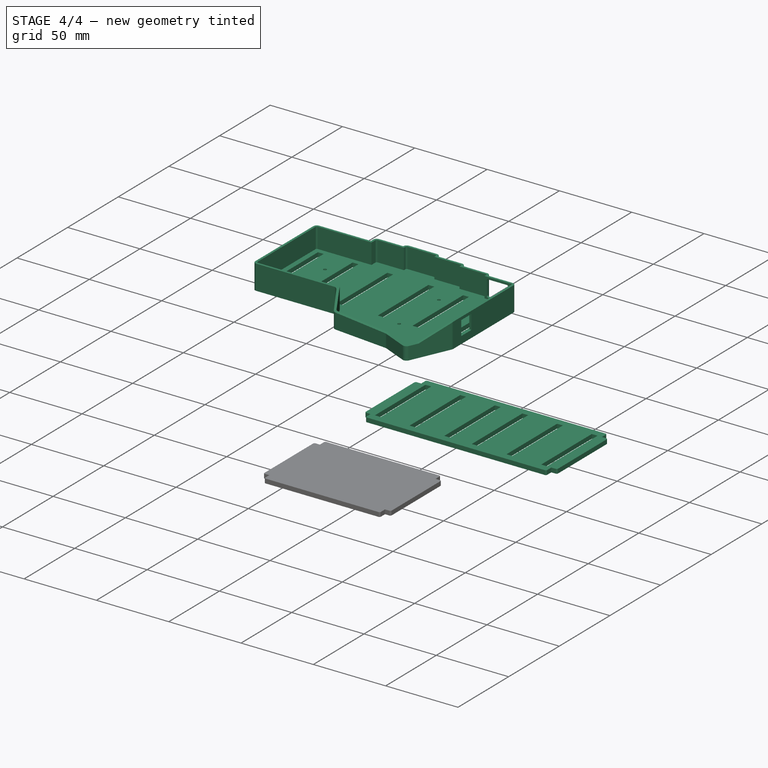
[diagram: stage 4 of 4 — iso view after this stage's code; geometry added in this stage tinted green]
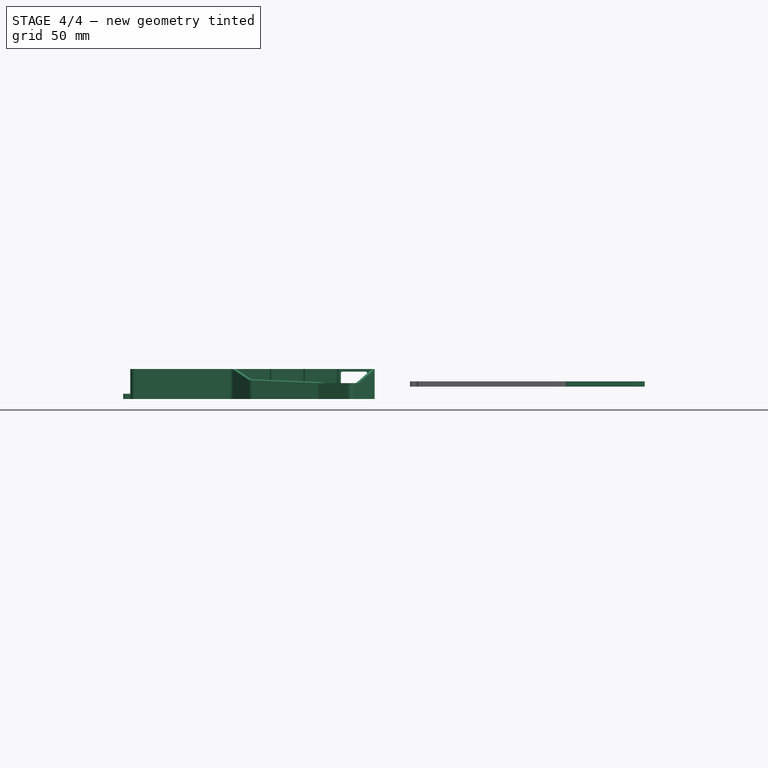
[diagram: stage 4 of 4 — front view after this stage's code; geometry added in this stage tinted green]
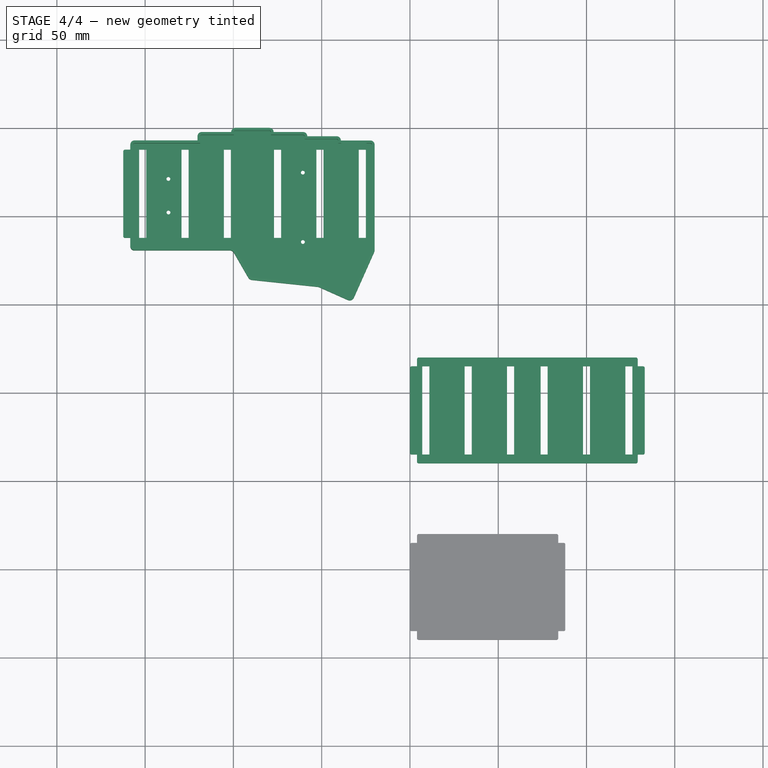
[diagram: stage 4 of 4 — top view after this stage's code; geometry added in this stage tinted green]
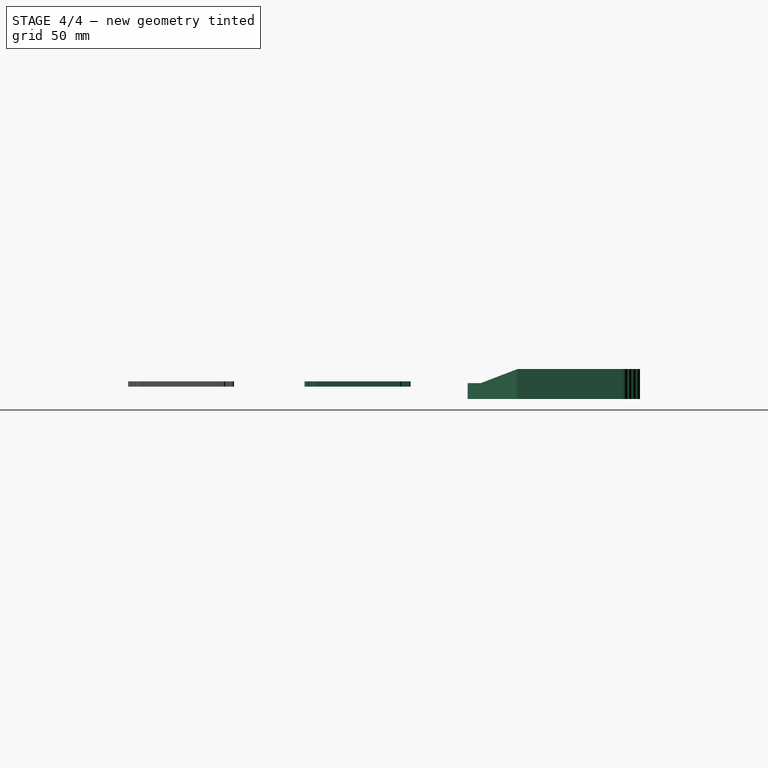
[diagram: stage 4 of 4 — right view after this stage's code; geometry added in this stage tinted green]
FEATURE [Sketcher::SketchObject] Sketch009
  FullyConstrained = true
  MapMode = 5
  Support = -> [XY_Plane001]
  sketch-geometry (20):
    g0: LineSegment StartX=1 StartY=-135 StartZ=0 EndX=4 EndY=-135 EndZ=0
    g1: LineSegment StartX=4 StartY=-135 StartZ=0 EndX=4 EndY=-131 EndZ=0
    g2: LineSegment StartX=5 StartY=-130 StartZ=0 EndX=128 EndY=-130 EndZ=0
    g3: LineSegment StartX=129 StartY=-131 StartZ=0 EndX=129 EndY=-135 EndZ=0
    g4: LineSegment StartX=129 StartY=-135 StartZ=0 EndX=132 EndY=-135 EndZ=0
    g5: LineSegment StartX=133 StartY=-136 StartZ=0 EndX=133 EndY=-184 EndZ=0
    g6: LineSegment StartX=132 StartY=-185 StartZ=0 EndX=129 EndY=-185 EndZ=0
    g7: LineSegment StartX=129 StartY=-185 StartZ=0 EndX=129 EndY=-189 EndZ=0
    g8: LineSegment StartX=128 StartY=-190 StartZ=0 EndX=5 EndY=-190 EndZ=0
    g9: LineSegment StartX=4 StartY=-189 StartZ=0 EndX=4 EndY=-185 EndZ=0
    g10: LineSegment StartX=4 StartY=-185 StartZ=0 EndX=1 EndY=-185 EndZ=0
    g11: LineSegment StartX=0 StartY=-184 StartZ=0 EndX=0 EndY=-136 EndZ=0
    g12: ArcOfCircle CenterX=128 CenterY=-131 CenterZ=0 NormalX=0 NormalY=0 NormalZ=1 AngleXU=0 Radius=1 StartAngle=-9.8e-15 EndAngle=1.5708
    g13: ArcOfCircle CenterX=132 CenterY=-136 CenterZ=0 NormalX=0 NormalY=0 NormalZ=1 AngleXU=0 Radius=1 StartAngle=1.01e-14 EndAngle=1.5708
    g14: ArcOfCircle CenterX=132 CenterY=-184 CenterZ=0 NormalX=0 NormalY=0 NormalZ=1 AngleXU=0 Radius=1 StartAngle=4.71239 EndAngle=6.28319
    g15: ArcOfCircle CenterX=128 CenterY=-189 CenterZ=0 NormalX=0 NormalY=0 NormalZ=1 AngleXU=0 Radius=1 StartAngle=4.71239 EndAngle=6.28319
    g16: ArcOfCircle CenterX=5 CenterY=-189 CenterZ=0 NormalX=0 NormalY=0 NormalZ=1 AngleXU=0 Radius=1 StartAngle=3.14159 EndAngle=4.71239
    g17: ArcOfCircle CenterX=1 CenterY=-184 CenterZ=0 NormalX=0 NormalY=0 NormalZ=1 AngleXU=0 Radius=1 StartAngle=3.14159 EndAngle=4.71239
    g18: ArcOfCircle CenterX=1 CenterY=-136 CenterZ=0 NormalX=0 NormalY=0 NormalZ=1 AngleXU=0 Radius=1 StartAngle=1.5708 EndAngle=3.14159
    g19: ArcOfCircle CenterX=5 CenterY=-131 CenterZ=0 NormalX=0 NormalY=0 NormalZ=1 AngleXU=0 Radius=1 StartAngle=1.5708 EndAngle=3.14159
  constraints (52):
    c: Coincident(g0,g1)
    c: Vertical(g1)
    c: Horizontal(g2)
    c: Vertical(g3)
    c: Coincident(g3,g4)
    c: Vertical(g5)
    c: Coincident(g6,g7)
    c: Vertical(g7)
    c: Horizontal(g8)
    c: Vertical(g9)
    c: Coincident(g9,g10)
    c: Vertical(g11)
    c: Tangent(g2,g12) = 1.5708
    c: Tangent(g3,g12) = 1.5708
    c: Tangent(g4,g13) = 1.5708
    c: Tangent(g5,g13) = 1.5708
    c: Tangent(g5,g14) = 1.5708
    c: Tangent(g6,g14) = 1.5708
    c: Tangent(g7,g15) = 1.5708
    c: Tangent(g8,g15) = 1.5708
    c: Tangent(g8,g16) = 1.5708
    c: Tangent(g9,g16) = 1.5708
    c: Tangent(g10,g17) = 1.5708
    c: Tangent(g11,g17) = 1.5708
    c: Tangent(g0,g18) = 1.5708
    c: Tangent(g11,g18) = 1.5708
    c: Tangent(g1,g19) = 1.5708
    c: Tangent(g2,g19) = 1.5708
    c: DistanceY(g8,g9) = 5
    c: DistanceY(g8,g6) = 5
    c: DistanceY(g3,g2) = 5
    c: DistanceY(g0,g2) = 5
    c: Radius(g19) = 1
    c: Radius(g18) = 1
    c: Radius(g17) = 1
    c: Radius(g16) = 1
    c: Radius(g15) = 1
    c: Radius(g14) = 1
    c: Radius(g13) = 1
    c: Radius(g12) = 1
    c: DistanceY(g4,g3) = 0
    c: DistanceY(g6,g6) = 0
    c: DistanceY(g0,g0) = 0
    c: DistanceY(g9,g10) = 0
    c: DistanceX(g3,g5) = 4
    c: DistanceX(g11,g0) = 4
    c: Equal(g2,g8)
    c: DistanceX(g2,g8) = 0
    c: DistanceX(g0,g3) = 125
    c: DistanceX(g-1,g11) = 0
    c: DistanceY(g2,g-1) = 130
    c: DistanceY(g9,g0) = 50
FEATURE [PartDesign::Pad] Pad002
  Direction = (0,0,1)
  Length = 10
  Length2 = -7
  Profile = -> Sketch009
  ReferenceAxis = -> Sketch009 [N_Axis]
  Reversed = true
  Type = 4
FEATURE [Sketcher::SketchObject] Sketch010
  ExternalGeometry = -> [Pad002]
  FullyConstrained = true
  MapMode = 5
  Support = -> [XY_Plane001]
  sketch-geometry (24):
    g0: LineSegment StartX=7 StartY=-135 StartZ=0 EndX=11 EndY=-135 EndZ=0
    g1: LineSegment StartX=11 StartY=-135 StartZ=0 EndX=11 EndY=-185 EndZ=0
    g2: LineSegment StartX=11 StartY=-185 StartZ=0 EndX=7 EndY=-185 EndZ=0
    g3: LineSegment StartX=7 StartY=-185 StartZ=0 EndX=7 EndY=-135 EndZ=0
    g4: LineSegment StartX=31 StartY=-135 StartZ=0 EndX=35 EndY=-135 EndZ=0
    g5: LineSegment StartX=35 StartY=-135 StartZ=0 EndX=35 EndY=-185 EndZ=0
    g6: LineSegment StartX=35 StartY=-185 StartZ=0 EndX=31 EndY=-185 EndZ=0
    g7: LineSegment StartX=31 StartY=-185 StartZ=0 EndX=31 EndY=-135 EndZ=0
    g8: LineSegment StartX=55 StartY=-135 StartZ=0 EndX=59 EndY=-135 EndZ=0
    g9: LineSegment StartX=59 StartY=-135 StartZ=0 EndX=59 EndY=-185 EndZ=0
    g10: LineSegment StartX=59 StartY=-185 StartZ=0 EndX=55 EndY=-185 EndZ=0
    g11: LineSegment StartX=55 StartY=-185 StartZ=0 EndX=55 EndY=-135 EndZ=0
    g12: LineSegment StartX=122 StartY=-135 StartZ=0 EndX=126 EndY=-135 EndZ=0
    g13: LineSegment StartX=126 StartY=-135 StartZ=0 EndX=126 EndY=-185 EndZ=0
    g14: LineSegment StartX=126 StartY=-185 StartZ=0 EndX=122 EndY=-185 EndZ=0
    g15: LineSegment StartX=122 StartY=-185 StartZ=0 EndX=122 EndY=-135 EndZ=0
    g16: LineSegment StartX=98 StartY=-135 StartZ=0 EndX=102 EndY=-135 EndZ=0
    g17: LineSegment StartX=102 StartY=-135 StartZ=0 EndX=102 EndY=-185 EndZ=0
    g18: LineSegment StartX=102 StartY=-185 StartZ=0 EndX=98 EndY=-185 EndZ=0
    g19: LineSegment StartX=98 StartY=-185 StartZ=0 EndX=98 EndY=-135 EndZ=0
    g20: LineSegment StartX=74 StartY=-135 StartZ=0 EndX=78 EndY=-135 EndZ=0
    g21: LineSegment StartX=78 StartY=-135 StartZ=0 EndX=78 EndY=-185 EndZ=0
    g22: LineSegment StartX=78 StartY=-185 StartZ=0 EndX=74 EndY=-185 EndZ=0
    g23: LineSegment StartX=74 StartY=-185 StartZ=0 EndX=74 EndY=-135 EndZ=0
  constraints (72):
    c: Coincident(g0,g1)
    c: Coincident(g1,g2)
    c: Coincident(g2,g3)
    c: Coincident(g3,g0)
    c: Horizontal(g0)
    c: Horizontal(g2)
    c: Vertical(g1)
    c: Vertical(g3)
    c: DistanceX(g0,g0) = 4
    c: DistanceX(g-3,g0) = 3
    c: DistanceY(g0,g-3) = 0
    c: DistanceY(g-4,g2) = 0
    c: Coincident(g4,g5)
    c: Coincident(g5,g6)
    c: Coincident(g6,g7)
    c: Coincident(g7,g4)
    c: Horizontal(g4)
    c: Horizontal(g6)
    c: Vertical(g5)
    c: Vertical(g7)
    c: Coincident(g8,g9)
    c: Coincident(g9,g10)
    c: Coincident(g10,g11)
    c: Coincident(g11,g8)
    c: Horizontal(g8)
    c: Horizontal(g10)
    c: Vertical(g9)
    c: Vertical(g11)
    c: Coincident(g12,g13)
    c: Coincident(g13,g14)
    c: Coincident(g14,g15)
    c: Coincident(g15,g12)
    c: Horizontal(g12)
    c: Horizontal(g14)
    c: Vertical(g13)
    c: Vertical(g15)
    c: Coincident(g16,g17)
    c: Coincident(g17,g18)
    c: Coincident(g18,g19)
    c: Coincident(g19,g16)
    c: Horizontal(g16)
    c: Horizontal(g18)
    c: Vertical(g17)
    c: Vertical(g19)
    c: Coincident(g20,g21)
    c: Coincident(g21,g22)
    c: Coincident(g22,g23)
    c: Coincident(g23,g20)
    c: Horizontal(g20)
    c: Horizontal(g22)
    c: Vertical(g21)
    c: Vertical(g23)
    c: DistanceX(g4,g4) = 4
    c: DistanceX(g8,g8) = 4
    c: DistanceX(g20,g20) = 4
    c: DistanceX(g16,g16) = 4
    c: DistanceX(g12,g12) = 4
    c: DistanceX(g12,g-5) = 3
    c: DistanceX(g16,g12) = 20
    c: DistanceX(g20,g16) = 20
    c: DistanceX(g0,g4) = 20
    c: DistanceX(g4,g8) = 20
    c: DistanceY(g4,g0) = 0
    c: DistanceY(g8,g4) = 0
    c: DistanceY(g20,g8) = 0
    c: DistanceY(g16,g20) = 0
    c: DistanceY(g12,g16) = 0
    c: DistanceY(g1,g6) = 0
    c: DistanceY(g5,g10) = 0
    c: DistanceY(g9,g22) = 0
    c: DistanceY(g21,g18) = 0
    c: DistanceY(g17,g14) = 0
FEATURE [PartDesign::Pocket] Pocket007
  BaseFeature = -> Pad002
  Direction = (0,0,-1)
  Length = 5
  Length2 = 5
  Profile = -> Sketch010
  ReferenceAxis = -> Sketch010 [N_Axis]
  Type = 1
FEATURE [PartDesign::Body] Body  label="Case_Right"
  Group = -> [Sketch,Pad,Sketch001,Pocket,Sketch002,Pocket001,Sketch003,Pocket002,Sketch004,Pocket003,Sketch011,Pocket008,Sketch012,Pocket009,Sketch013,Pad003]
  Origin = -> Origin
  Tip = -> Pad003
FEATURE [Part::Mirroring] Part__Mirroring  label="Case_Left (Mirror #1)"
  Base = (-10,-10,-10)
  Normal = (1,0,0)
  Source = -> Body
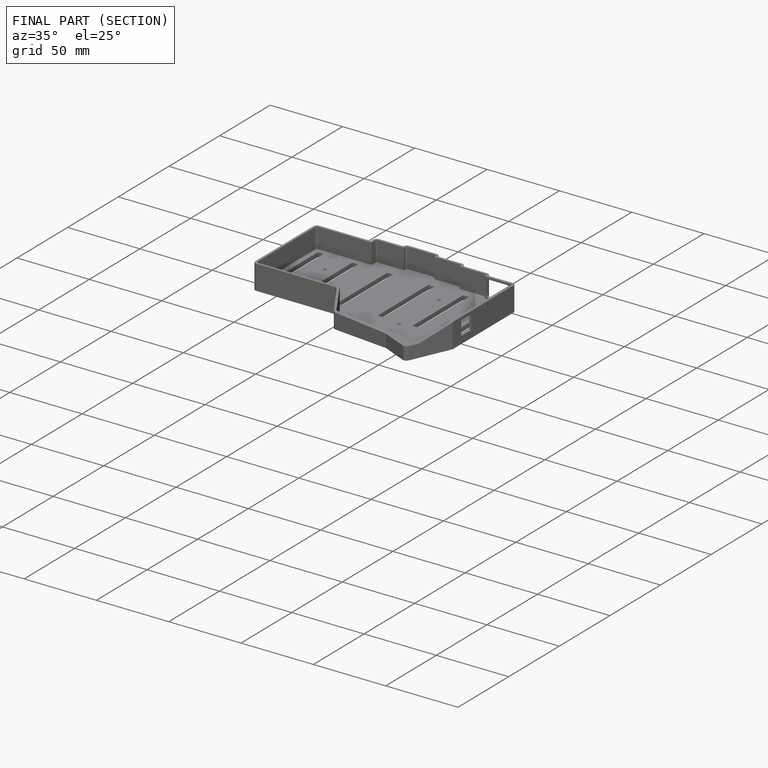
[diagram: finished part — half-section view (interior)]
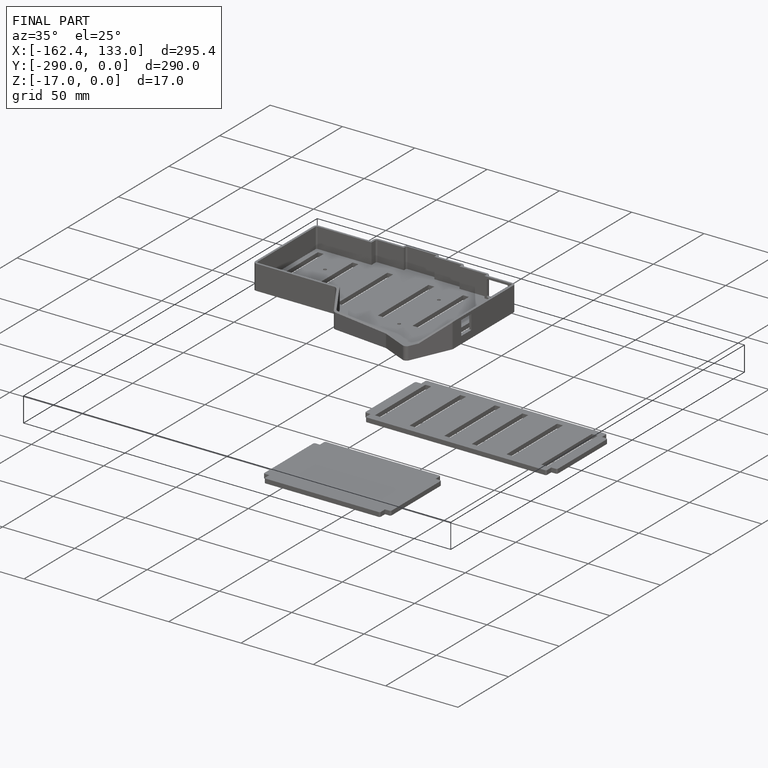
[diagram: finished part — iso view with bounding-box wireframe]
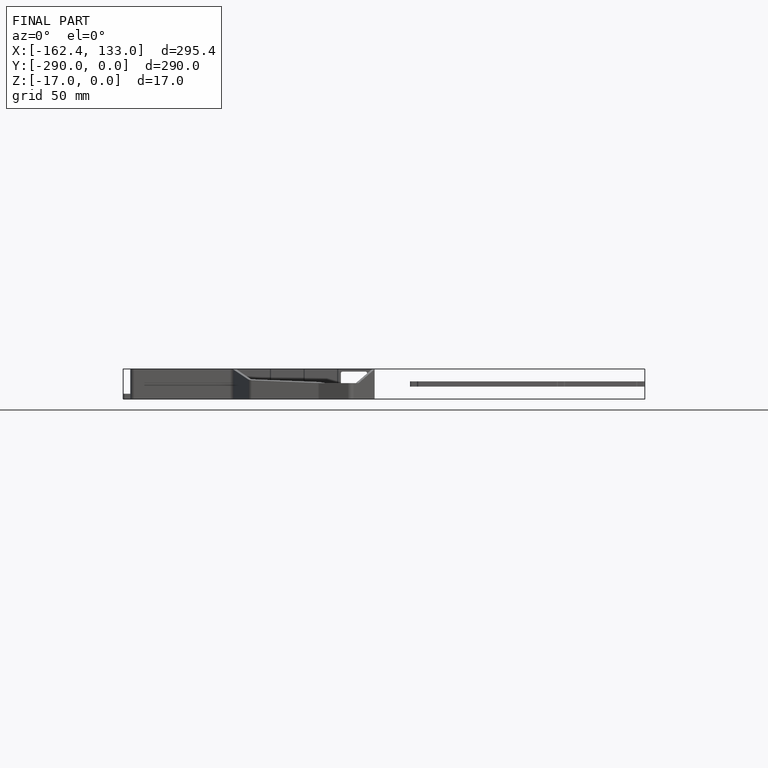
[diagram: finished part — front view with bounding-box wireframe]
